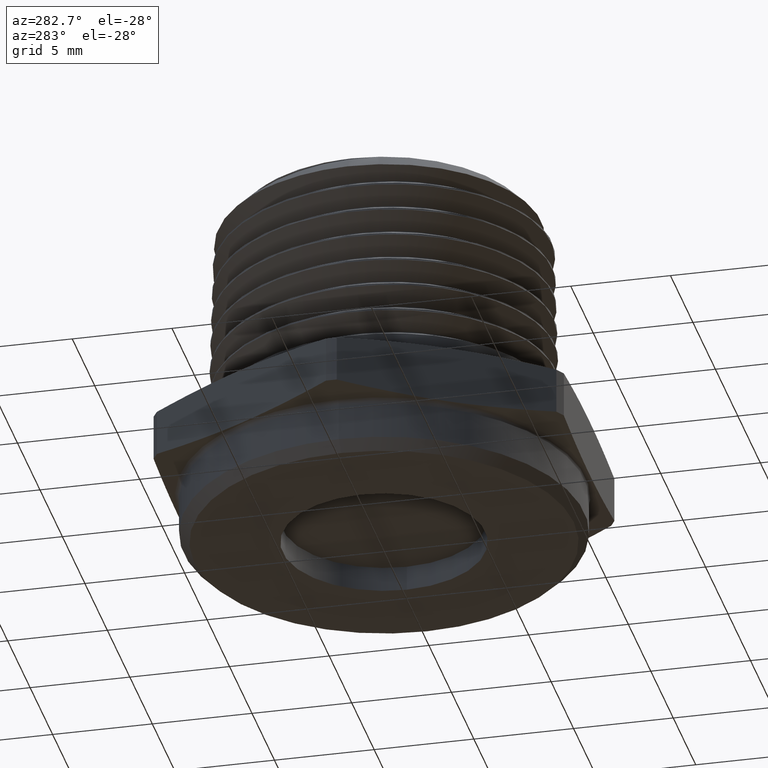
[diagram: clean part render]
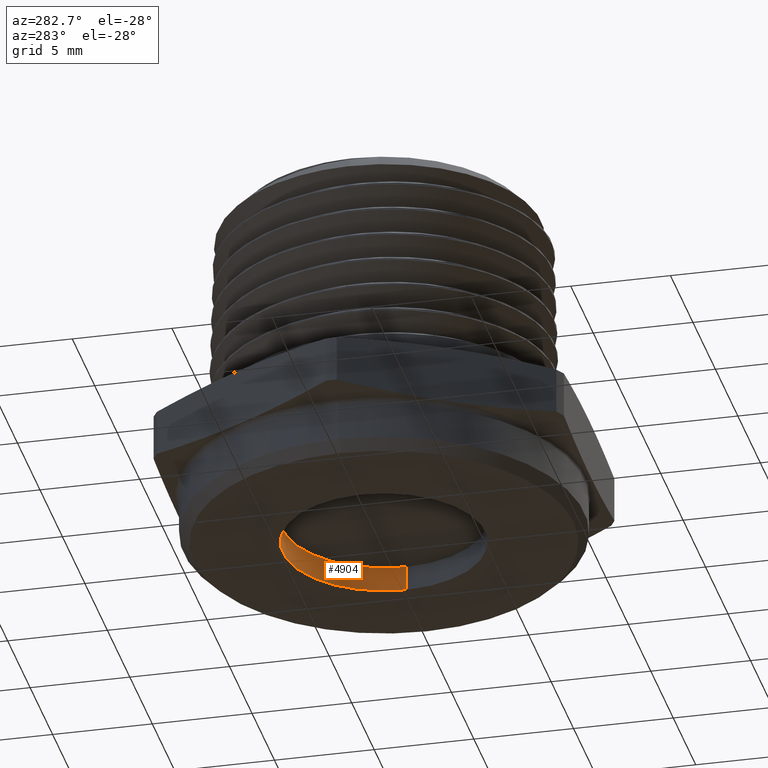
[diagram: same view with one face highlighted and labeled with its STEP entity id]
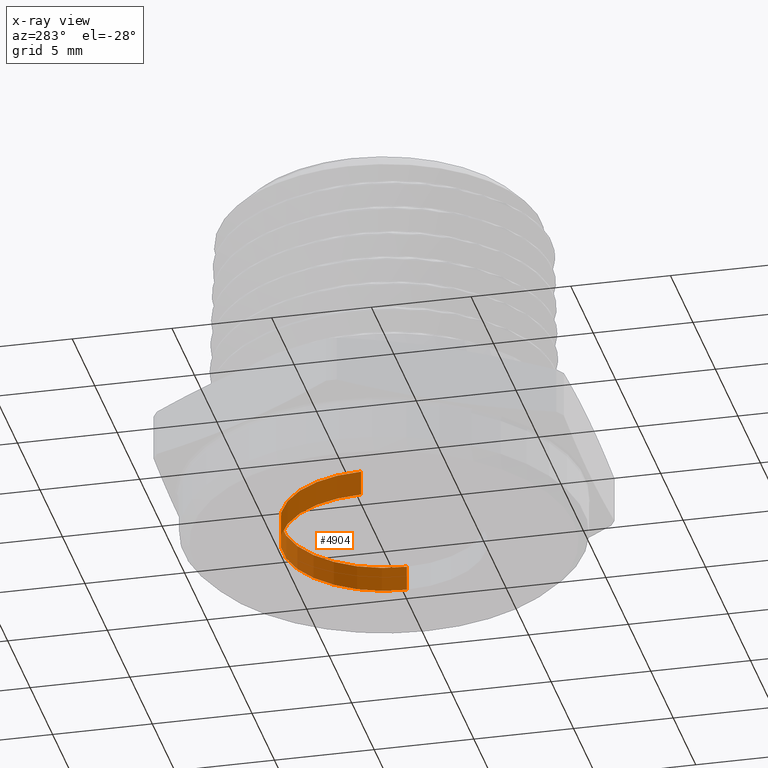
[diagram: x-ray of the same camera — body ghosted, the highlighted face saturated]
A machine part, auxiliary view. The second image highlights one B-rep face of the part: STEP entity #4904.
The next image is the same camera in x-ray: the body ghosted, the highlighted face saturated — about 0% of this face is hidden behind the body in this view.
In plain terms, the highlighted cylindrical surface (partial cylindrical patch) has radius 5.08 mm, axis along (-0, -0, -1).
Its self-contained STEP definition (entity closure, byte-faithful):
#426 = LINE ( 'NONE', #4202, #427 ) ;
#427 = VECTOR ( 'NONE', #4204, 39.37007874015748100 ) ;
#487 = CIRCLE ( 'NONE', #997, 0.1999999999999999800 ) ;
#490 = CIRCLE ( 'NONE', #1000, 0.1999999999999999800 ) ;
#513 = FACE_OUTER_BOUND ( 'NONE', #1146, .T. ) ;
#520 = CYLINDRICAL_SURFACE ( 'NONE', #1020, 0.1999999999999999800 ) ;
#672 = VERTEX_POINT ( 'NONE', #5275 ) ;
#725 = VERTEX_POINT ( 'NONE', #5257 ) ;
#748 = VERTEX_POINT ( 'NONE', #5256 ) ;
#782 = VERTEX_POINT ( 'NONE', #5213 ) ;
#822 = EDGE_CURVE ( 'NONE', #782, #725, #5289, .T. ) ;
#885 = EDGE_CURVE ( 'NONE', #748, #672, #426, .T. ) ;
#940 = EDGE_CURVE ( 'NONE', #748, #782, #487, .T. ) ;
#943 = EDGE_CURVE ( 'NONE', #672, #725, #490, .T. ) ;
#997 = AXIS2_PLACEMENT_3D ( 'NONE', #1723, #1724, #1725 ) ;
#1000 = AXIS2_PLACEMENT_3D ( 'NONE', #1733, #1734, #1735 ) ;
#1020 = AXIS2_PLACEMENT_3D ( 'NONE', #1832, #1828, #1830 ) ;
#1146 = EDGE_LOOP ( 'NONE', ( #1874, #1873, #1872, #1871 ) ) ;
#1723 = CARTESIAN_POINT ( 'NONE',  ( 2.698495238042102400E-018, 0.0000000000000000000, -0.05000000000000000300 ) ) ;
#1724 = DIRECTION ( 'NONE',  ( -2.947696877789500000E-017, -0.0000000000000000000, -1.000000000000000000 ) ) ;
#1725 = DIRECTION ( 'NONE',  ( -1.000000000000000000, 0.0000000000000000000, 4.268512490100411900E-017 ) ) ;
#1733 = CARTESIAN_POINT ( 'NONE',  ( 1.224646799147352000E-018, 0.0000000000000000000, -0.1000000000000000100 ) ) ;
#1734 = DIRECTION ( 'NONE',  ( -2.947696877789500000E-017, -0.0000000000000000000, -1.000000000000000000 ) ) ;
#1735 = DIRECTION ( 'NONE',  ( -1.000000000000000000, 0.0000000000000000000, 0.0000000000000000000 ) ) ;
#1828 = DIRECTION ( 'NONE',  ( -2.947696877789500000E-017, -0.0000000000000000000, -1.000000000000000000 ) ) ;
#1830 = DIRECTION ( 'NONE',  ( -1.000000000000000000, 0.0000000000000000000, 0.0000000000000000000 ) ) ;
#1832 = CARTESIAN_POINT ( 'NONE',  ( 1.224646799147352400E-018, 0.0000000000000000000, -0.1000000000000000100 ) ) ;
#1871 = ORIENTED_EDGE ( 'NONE', *, *, #943, .T. ) ;
#1872 = ORIENTED_EDGE ( 'NONE', *, *, #885, .T. ) ;
#1873 = ORIENTED_EDGE ( 'NONE', *, *, #940, .F. ) ;
#1874 = ORIENTED_EDGE ( 'NONE', *, *, #822, .F. ) ;
#3338 = CARTESIAN_POINT ( 'NONE',  ( 0.1999999999999999800, 2.449293598294706200E-017, -0.1000000000000000100 ) ) ;
#3340 = DIRECTION ( 'NONE',  ( -2.947696877789500000E-017, -0.0000000000000000000, -1.000000000000000000 ) ) ;
#4202 = CARTESIAN_POINT ( 'NONE',  ( -0.1999999999999999800, 0.0000000000000000000, -0.1000000000000000100 ) ) ;
#4204 = DIRECTION ( 'NONE',  ( -2.947696877789500000E-017, -0.0000000000000000000, -1.000000000000000000 ) ) ;
#4904 = ADVANCED_FACE ( 'NONE', ( #513 ), #520, .F. ) ;
#5213 = CARTESIAN_POINT ( 'NONE',  ( 0.1999999999999999800, 2.449293598294706200E-017, -0.05000000000000001000 ) ) ;
#5256 = CARTESIAN_POINT ( 'NONE',  ( -0.1999999999999999800, 0.0000000000000000000, -0.04999999999999999600 ) ) ;
#5257 = CARTESIAN_POINT ( 'NONE',  ( 0.1999999999999999800, 2.449293598294706200E-017, -0.1000000000000000100 ) ) ;
#5275 = CARTESIAN_POINT ( 'NONE',  ( -0.1999999999999999800, 0.0000000000000000000, -0.1000000000000000100 ) ) ;
#5285 = VECTOR ( 'NONE', #3340, 39.37007874015748100 ) ;
#5289 = LINE ( 'NONE', #3338, #5285 ) ;